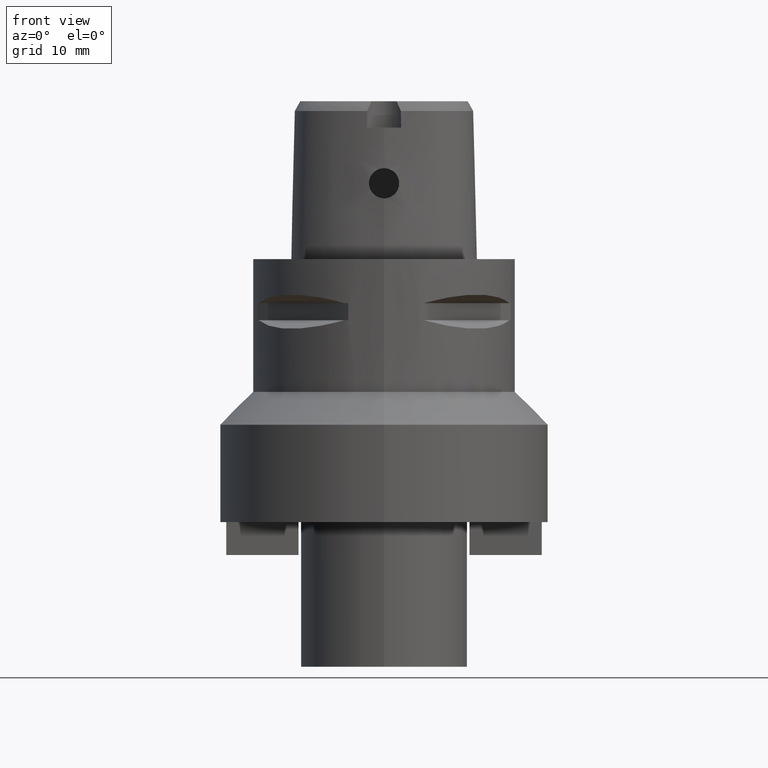
[diagram: clean part render]
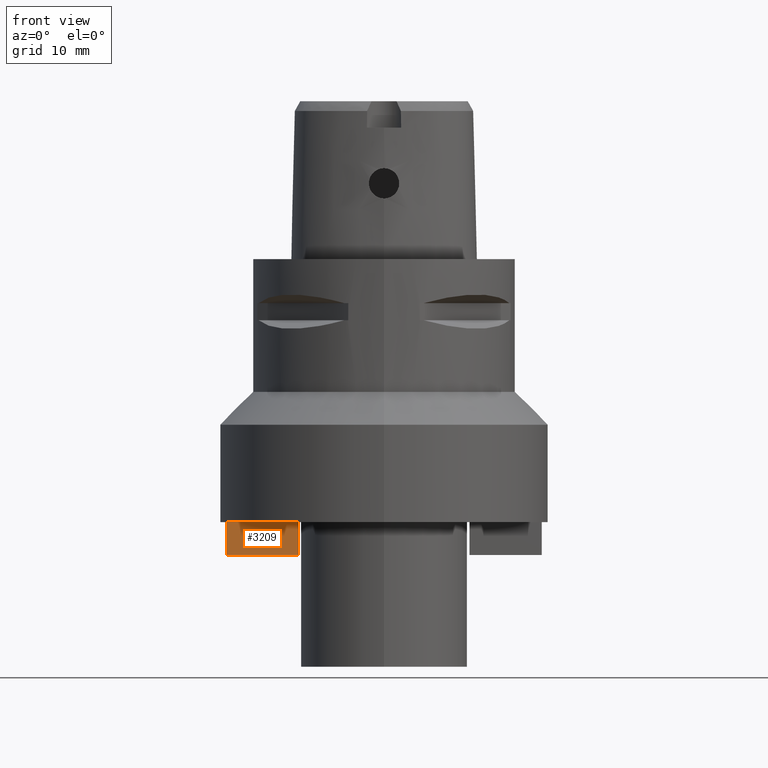
[diagram: same view with one face highlighted and labeled with its STEP entity id]
A machine part, front view. The second image highlights one B-rep face of the part: STEP entity #3209.
In plain terms, the highlighted planar face has unit normal (0, -1, 0).
Its self-contained STEP definition (entity closure, byte-faithful):
#596=DIRECTION('',(-1.E0,0.E0,0.E0));
#597=VECTOR('',#596,1.1E1);
#598=CARTESIAN_POINT('',(-1.3E1,-4.75E0,-4.E1));
#599=LINE('',#598,#597);
#1249=DIRECTION('',(0.E0,0.E0,-1.E0));
#1250=VECTOR('',#1249,5.E0);
#1251=CARTESIAN_POINT('',(-1.3E1,-4.75E0,-4.E1));
#1252=LINE('',#1251,#1250);
#1256=DIRECTION('',(-1.E0,0.E0,0.E0));
#1257=VECTOR('',#1256,1.1E1);
#1258=CARTESIAN_POINT('',(-1.3E1,-4.75E0,-4.5E1));
#1259=LINE('',#1258,#1257);
#1263=DIRECTION('',(0.E0,0.E0,1.E0));
#1264=VECTOR('',#1263,5.E0);
#1265=CARTESIAN_POINT('',(-2.4E1,-4.75E0,-4.5E1));
#1266=LINE('',#1265,#1264);
#1688=CARTESIAN_POINT('',(-1.3E1,-4.75E0,-4.E1));
#1689=VERTEX_POINT('',#1688);
#1690=CARTESIAN_POINT('',(-2.4E1,-4.75E0,-4.E1));
#1691=VERTEX_POINT('',#1690);
#1765=CARTESIAN_POINT('',(-2.4E1,-4.75E0,-4.5E1));
#1766=VERTEX_POINT('',#1765);
#1767=CARTESIAN_POINT('',(-1.3E1,-4.75E0,-4.5E1));
#1768=VERTEX_POINT('',#1767);
#3196=CARTESIAN_POINT('',(0.E0,-4.75E0,0.E0));
#3197=DIRECTION('',(0.E0,-1.E0,0.E0));
#3198=DIRECTION('',(0.E0,0.E0,-1.E0));
#3199=AXIS2_PLACEMENT_3D('',#3196,#3197,#3198);
#3200=PLANE('',#3199);
#3201=ORIENTED_EDGE('',*,*,#2551,.F.);
#3203=ORIENTED_EDGE('',*,*,#3202,.T.);
#3205=ORIENTED_EDGE('',*,*,#3204,.T.);
#3206=ORIENTED_EDGE('',*,*,#3188,.T.);
#3207=EDGE_LOOP('',(#3201,#3203,#3205,#3206));
#3208=FACE_OUTER_BOUND('',#3207,.F.);
#2551=EDGE_CURVE('',#1689,#1691,#599,.T.);
#3188=EDGE_CURVE('',#1766,#1691,#1266,.T.);
#3202=EDGE_CURVE('',#1689,#1768,#1252,.T.);
#3204=EDGE_CURVE('',#1768,#1766,#1259,.T.);
#3209=ADVANCED_FACE('',(#3208),#3200,.T.);